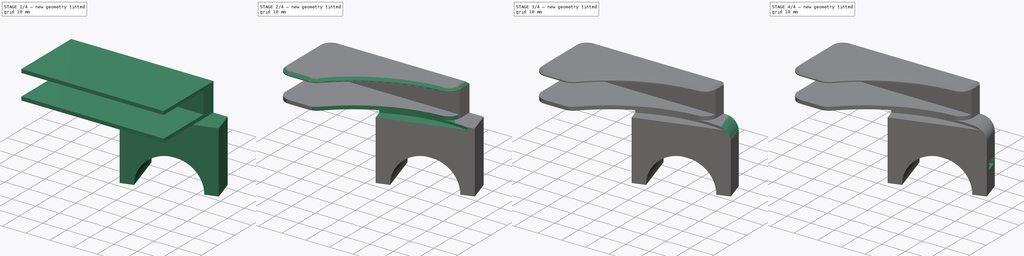
[diagram: build sequence overview — one tinted view per stage of 4, left to right]
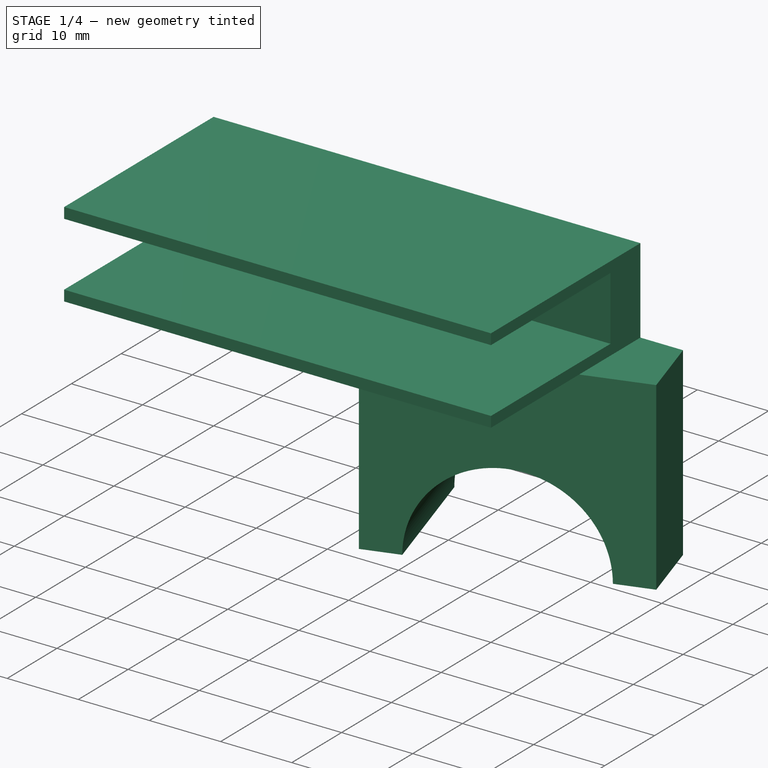
[diagram: stage 1 of 4 — iso view after this stage's code; geometry added in this stage tinted green]
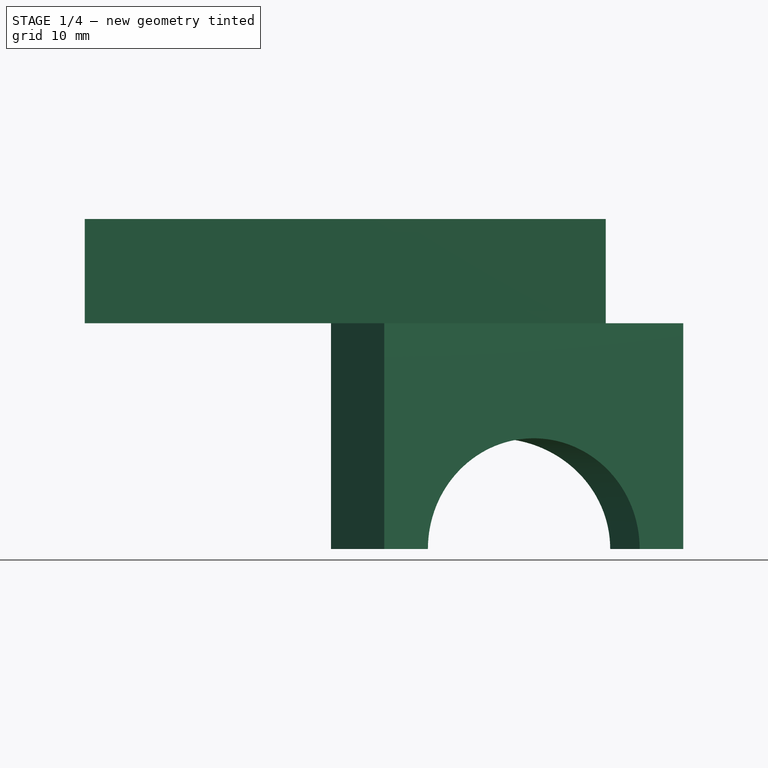
[diagram: stage 1 of 4 — front view after this stage's code; geometry added in this stage tinted green]
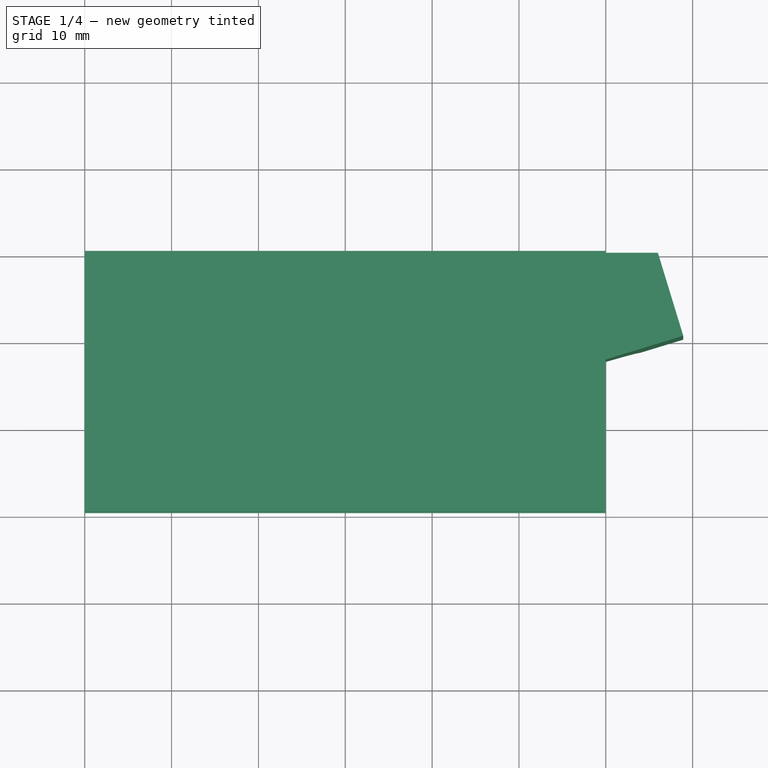
[diagram: stage 1 of 4 — top view after this stage's code; geometry added in this stage tinted green]
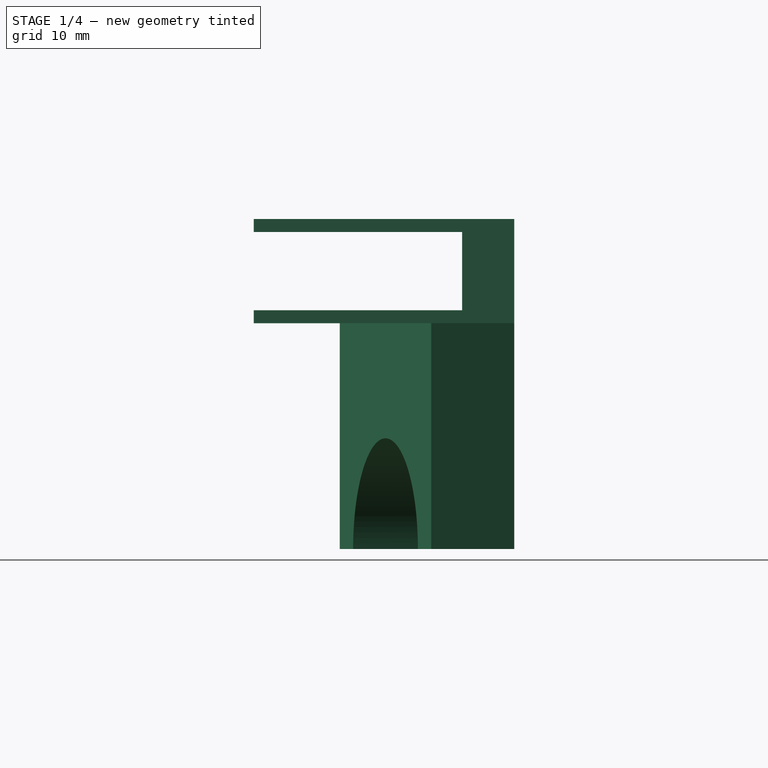
[diagram: stage 1 of 4 — right view after this stage's code; geometry added in this stage tinted green]
FCSTD DOCUMENT  (FreeCAD 0.16R)
Label: Guide7
License: All rights reserved
LicenseURL: http://en.wikipedia.org/wiki/All_rights_reserved
objects: Sketcher::SketchObject×8, PartDesign::Pocket×6, PartDesign::Chamfer×4, PartDesign::Pad×2, PartDesign::Fillet×2
note: 30 computed .brp shape members not serialized (recipe doc carries the construction recipe); baked Part::Feature solids carry a one-line shape summary decoded from their .brp

FEATURE [Sketcher::SketchObject] Sketch
  sketch-geometry (4):
    g0: LineSegment StartX=-60 StartY=0 StartZ=0 EndX=0 EndY=0 EndZ=0
    g1: LineSegment StartX=0 StartY=0 StartZ=0 EndX=0 EndY=-30 EndZ=0
    g2: LineSegment StartX=0 StartY=-30 StartZ=0 EndX=-60 EndY=-30 EndZ=0
    g3: LineSegment StartX=-60 StartY=-30 StartZ=0 EndX=-60 EndY=0 EndZ=0
  constraints (11):
    c: Coincident(g0,g1)
    c: Coincident(g1,g2)
    c: Coincident(g2,g3)
    c: Coincident(g3,g0)
    c: Horizontal(g0)
    c: Horizontal(g2)
    c: Vertical(g1)
    c: Vertical(g3)
    c: Coincident(g0,g-1)
    c: Distance(g3) = 30
    c: Distance(g0) = 60
FEATURE [PartDesign::Pad] Pad
  Length = 12
  Length2 = 100
  Midplane = true
  Sketch = -> Sketch
  Type = 0
FEATURE [Sketcher::SketchObject] Sketch001
  Placement = pos=(0,-30,0) rot=(1,0,0;1.5708rad)
  Support = -> Pad [Face3]
  sketch-geometry (4):
    g0: LineSegment StartX=-95.8323 StartY=4.5 StartZ=0 EndX=18.8197 EndY=4.5 EndZ=0
    g1: LineSegment StartX=18.8197 StartY=4.5 StartZ=0 EndX=18.8197 EndY=-4.5 EndZ=0
    g2: LineSegment StartX=18.8197 StartY=-4.5 StartZ=0 EndX=-95.8323 EndY=-4.5 EndZ=0
    g3: LineSegment StartX=-95.8323 StartY=-4.5 StartZ=0 EndX=-95.8323 EndY=4.5 EndZ=0
  constraints (12):
    c: Coincident(g0,g1)
    c: Coincident(g1,g2)
    c: Coincident(g2,g3)
    c: Coincident(g3,g0)
    c: Horizontal(g0)
    c: Horizontal(g2)
    c: Vertical(g1)
    c: Vertical(g3)
    c: DistanceX(g1) = 18.8197
    c: DistanceX(g2) = -95.8323
    c: Symmetric(g1,g0,g-1)
    c: Distance(g1) = 9
FEATURE [PartDesign::Pocket] Pocket
  Length = 24
  Sketch = -> Sketch001
  Type = 0
FEATURE [Sketcher::SketchObject] Sketch003
  ExternalGeometry = -> [Pocket]
  Placement = pos=(0,0,-6) rot=(1,0,0;3.14159rad)
  Support = -> Pocket [Face4]
  sketch-geometry (7):
    g0: LineSegment StartX=-31.6449 StartY=0 StartZ=0 EndX=6 EndY=0 EndZ=0
    g1: LineSegment StartX=6 StartY=0 StartZ=0 EndX=8.92372 EndY=9.56305 EndZ=0
    g2: LineSegment StartX=8.92372 StartY=9.56305 StartZ=0 EndX=-25.5033 EndY=20.0884 EndZ=0
    g3: LineSegment StartX=-25.5033 StartY=20.0884 StartZ=0 EndX=-31.6449 EndY=0 EndZ=0
    g4: LineSegment [constr] StartX=0.884158 StartY=44.8323 StartZ=0 EndX=-19.2182 EndY=-20.9195 EndZ=0
    g5: LineSegment StartX=-31.6449 StartY=0 StartZ=0 EndX=6 EndY=0 EndZ=0
    g6: LineSegment StartX=-31.6449 StartY=0 StartZ=0 EndX=6 EndY=0 EndZ=0
  constraints (21):
    c: Horizontal(g0)
    c: Coincident(g0,g1)
    c: Coincident(g1,g2)
    c: Coincident(g2,g3)
    c: Coincident(g3,g0)
    c: Parallel(g1,g3)
    c: Perpendicular(g3,g2)
    c: Distance(g2) = 36
    c: PointOnObject(g0,g-3)
    c: Perpendicular(g4,g2)
    c: Symmetric(g1,g2,g4)
    c: Distance(g1) = 10
    c: Angle(g4) = -1.8675
    c: DistanceX(g0) = 6
    c: Distance(g4) = 68.7561
    c: DistanceY(g4) = 44.8323
    c: Coincident(g5,g0)
    c: PointOnObject(g5,g-1)
    c: Coincident(g6,g0)
    c: Coincident(g6,g5)
    c: Coincident(g5,g0)
FEATURE [PartDesign::Pad] Pad001
  Length = 26
  Length2 = 100
  Sketch = -> Sketch003
  Type = 0
FEATURE [Sketcher::SketchObject] Sketch004
  ExternalGeometry = -> [Pad001]
  Placement = pos=(3.4366,-11.2406,0) rot=(0.978386,0.146221,0.146221;1.59265rad)
  Support = -> Pad001 [Face11]
  sketch-geometry (1):
    g0: Circle CenterX=-12.2622 CenterY=-32 CenterZ=0 NormalX=0 NormalY=0 NormalZ=1 Radius=12.75
  constraints (2):
    c: Radius(g0) = 12.75
    c: Symmetric(g-3,g-3,g0)
FEATURE [PartDesign::Pocket] Pocket001
  Length = 5
  Sketch = -> Sketch004
  Type = 1
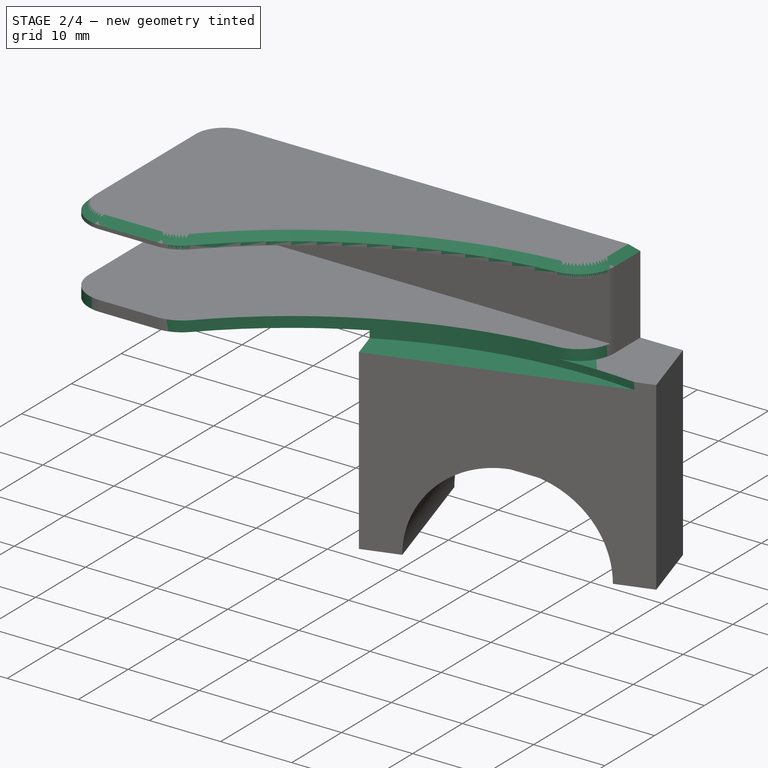
[diagram: stage 2 of 4 — iso view after this stage's code; geometry added in this stage tinted green]
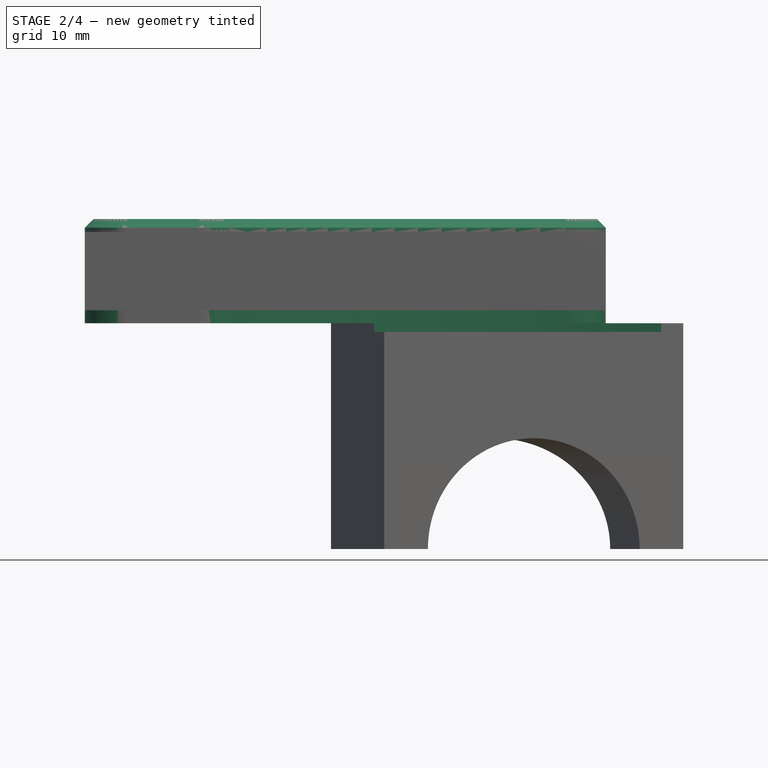
[diagram: stage 2 of 4 — front view after this stage's code; geometry added in this stage tinted green]
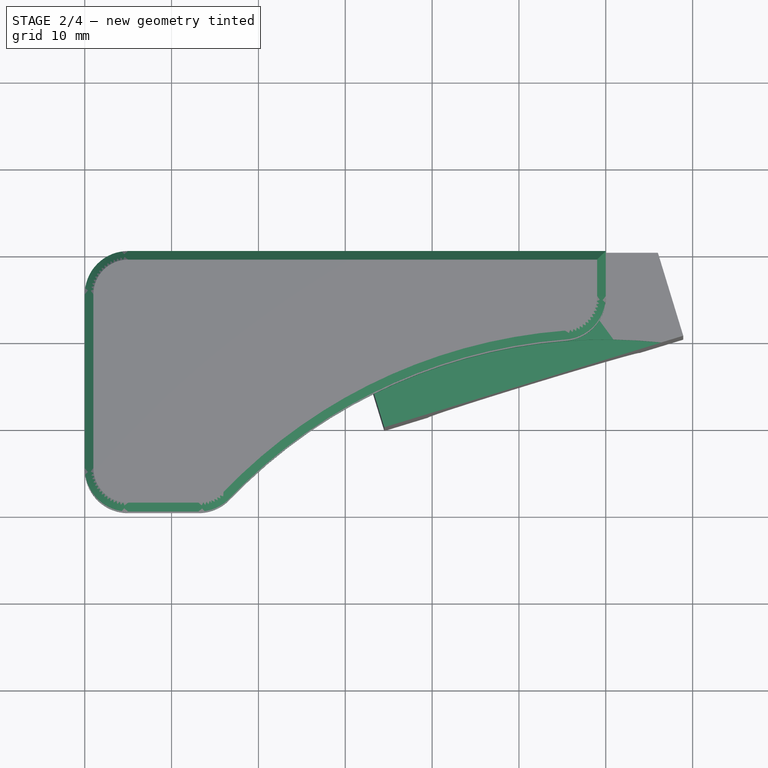
[diagram: stage 2 of 4 — top view after this stage's code; geometry added in this stage tinted green]
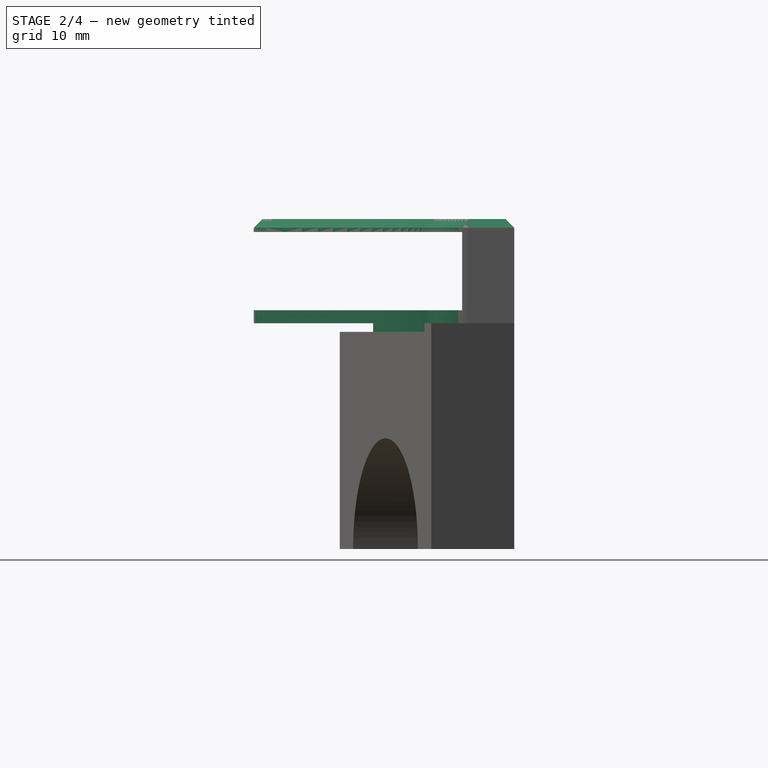
[diagram: stage 2 of 4 — right view after this stage's code; geometry added in this stage tinted green]
FEATURE [Sketcher::SketchObject] Sketch005
  Placement = pos=(0,0,6) rot=(0,0,1;0rad)
  Support = -> Pocket001 [Face4]
  sketch-geometry (1):
    g0: Circle CenterX=0 CenterY=-70 CenterZ=0 NormalX=0 NormalY=0 NormalZ=1 Radius=60
  constraints (3):
    c: Radius(g0) = 60
    c: PointOnObject(g0,g-2)
    c: DistanceY(g0) = -70
FEATURE [PartDesign::Pocket] Pocket002
  Length = 13
  Sketch = -> Sketch005
  Type = 0
FEATURE [PartDesign::Fillet] Fillet
  Base = -> Pocket002 [Edge4,Edge8,Edge19,Edge29,Edge45,Edge2]
  Radius = 5
FEATURE [PartDesign::Chamfer] Chamfer
  Base = -> Fillet [Edge27]
  Size = 1
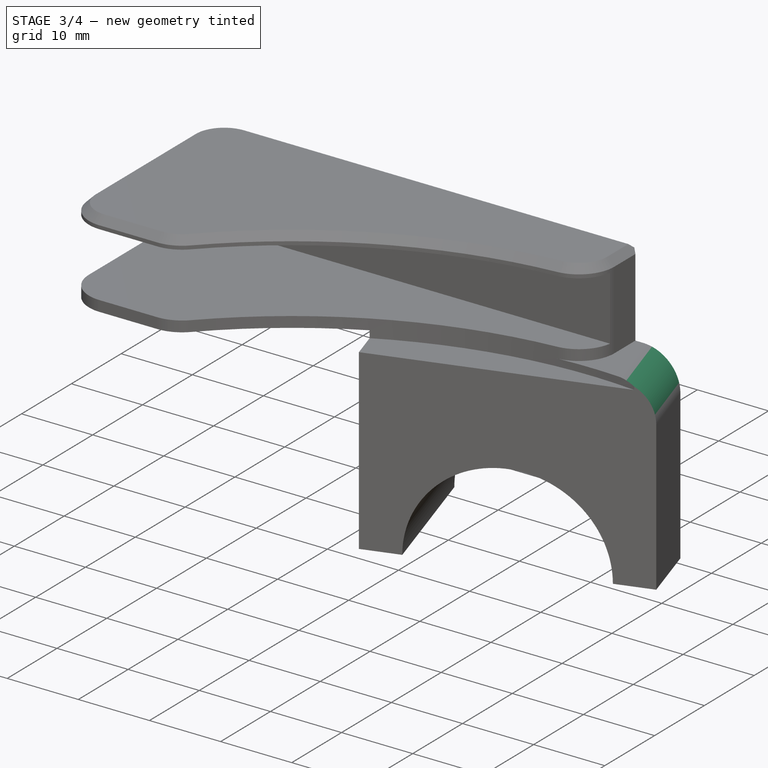
[diagram: stage 3 of 4 — iso view after this stage's code; geometry added in this stage tinted green]
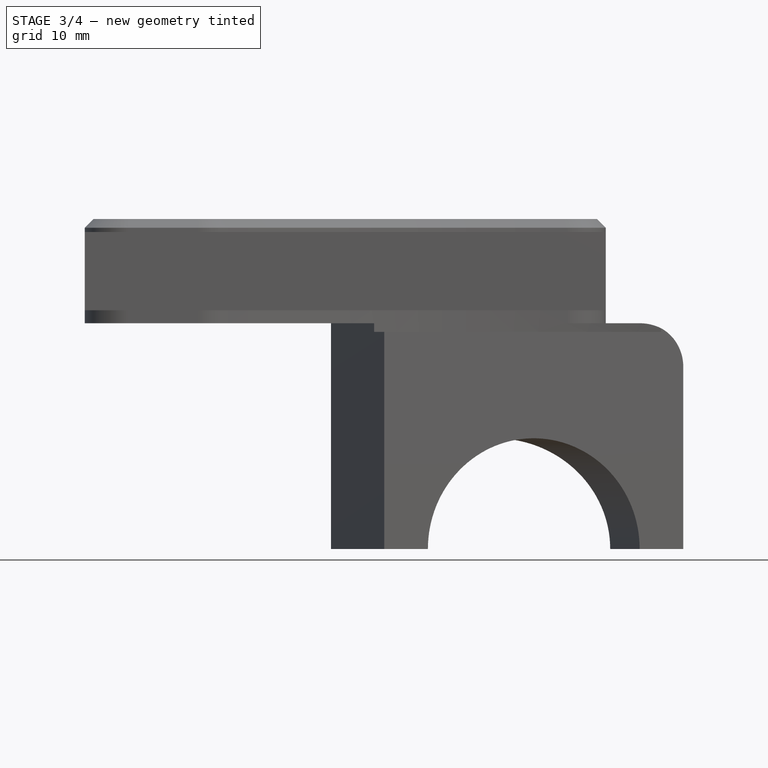
[diagram: stage 3 of 4 — front view after this stage's code; geometry added in this stage tinted green]
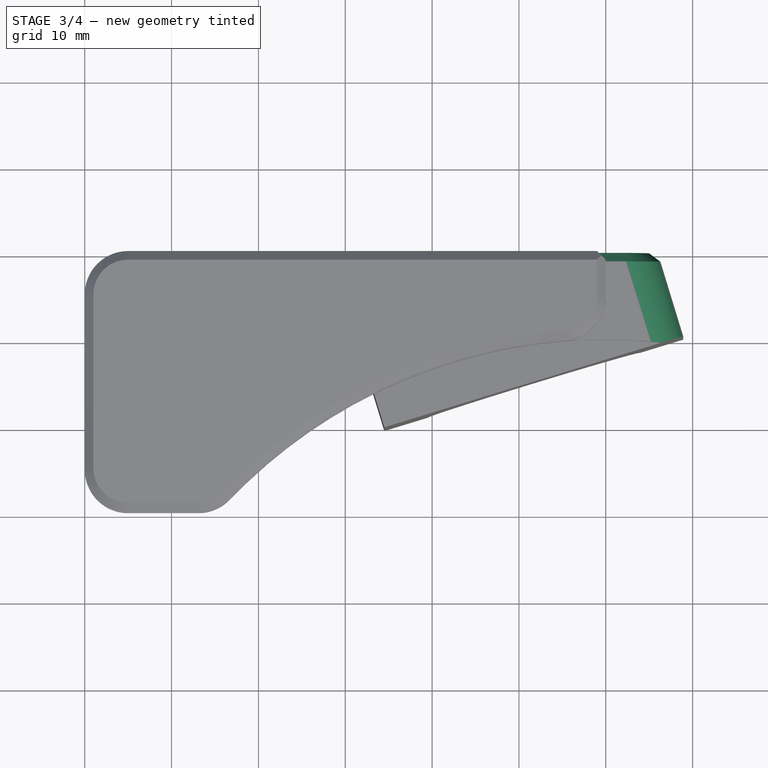
[diagram: stage 3 of 4 — top view after this stage's code; geometry added in this stage tinted green]
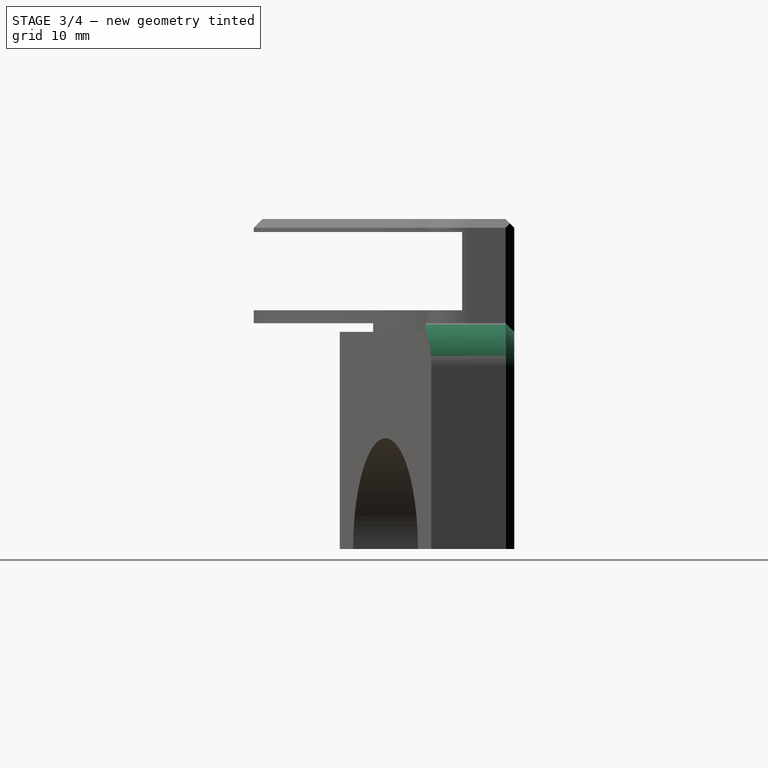
[diagram: stage 3 of 4 — right view after this stage's code; geometry added in this stage tinted green]
FEATURE [PartDesign::Fillet] Fillet001
  Base = -> Chamfer [Edge82]
  Radius = 5
FEATURE [PartDesign::Chamfer] Chamfer001
  Base = -> Fillet001 [Edge46]
  Size = 1
FEATURE [PartDesign::Chamfer] Chamfer002
  Base = -> Chamfer001 [Edge23]
  Size = 1
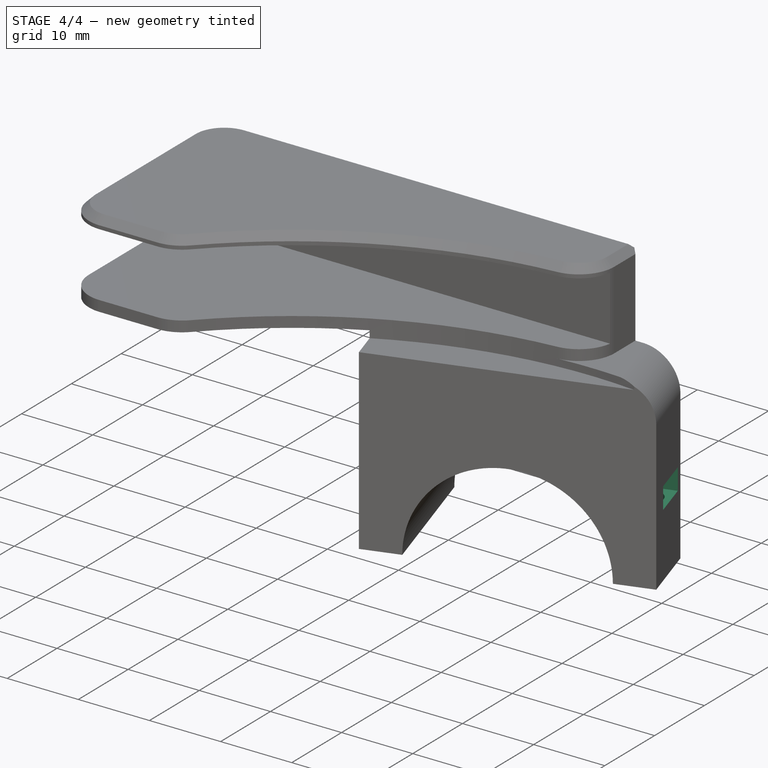
[diagram: stage 4 of 4 — iso view after this stage's code; geometry added in this stage tinted green]
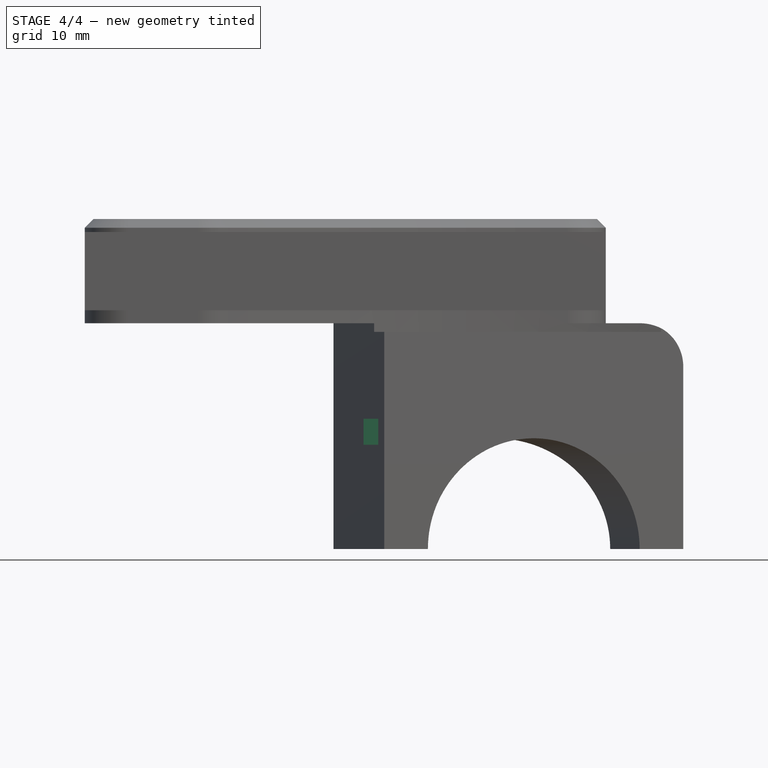
[diagram: stage 4 of 4 — front view after this stage's code; geometry added in this stage tinted green]
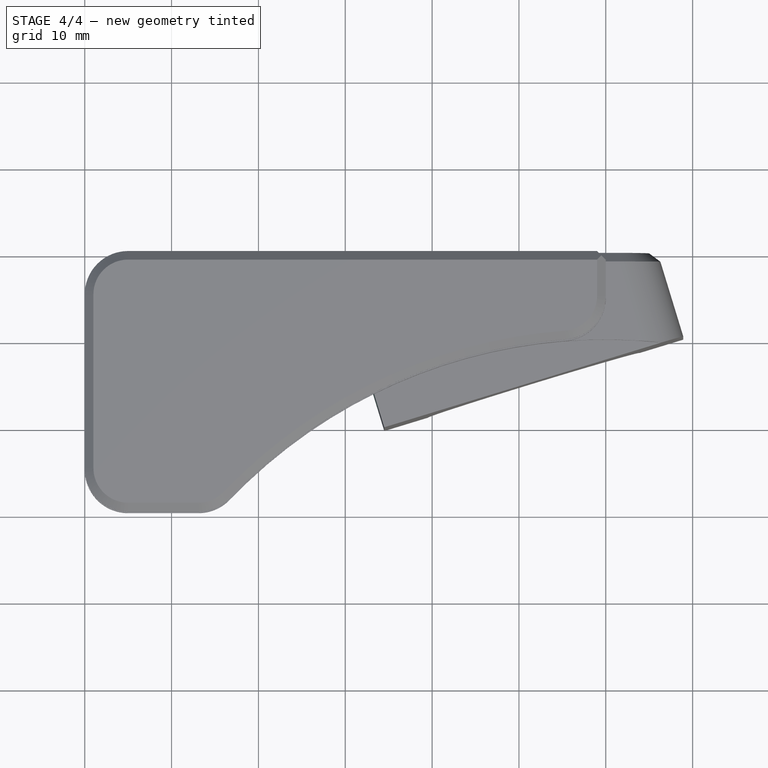
[diagram: stage 4 of 4 — top view after this stage's code; geometry added in this stage tinted green]
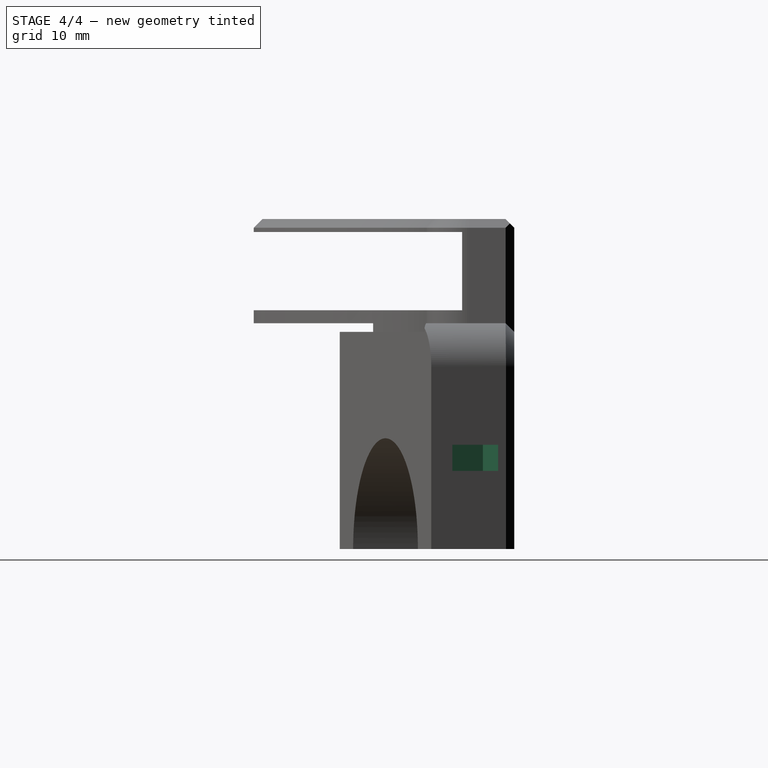
[diagram: stage 4 of 4 — right view after this stage's code; geometry added in this stage tinted green]
FEATURE [PartDesign::Chamfer] Chamfer003
  Base = -> Chamfer002 [Edge13]
  Size = 1
FEATURE [Sketcher::SketchObject] Sketch006
  ExternalGeometry = -> [Chamfer003]
  Placement = pos=(0,0,-32) rot=(1,0,0;3.14159rad)
  Support = -> Chamfer003 [Face6]
  sketch-geometry (2):
    g0: Circle CenterX=-24.4681 CenterY=14.0684 CenterZ=0 NormalX=0 NormalY=0 NormalZ=1 Radius=1.9
    g1: Circle CenterX=4.69918 CenterY=5.15104 CenterZ=0 NormalX=0 NormalY=0 NormalZ=1 Radius=1.9
  constraints (6):
    c: Radius(g1) = 1.9
    c: Equal(g1,g0)
    c: Distance(g1,g-6) = 2.5
    c: Distance(g0,g-5) = 2.5
    c: Distance(g-5,g0) = 6
    c: Distance(g1,g-6) = 6
FEATURE [PartDesign::Pocket] Pocket003
  Length = 12
  Sketch = -> Sketch006
  Type = 0
FEATURE [Sketcher::SketchObject] Sketch007
  ExternalGeometry = -> [Pocket003]
  Placement = pos=(-28.9399,-8.8478,0) rot=(0.690875,-0.51122,-0.51122;1.93244rad)
  Support = -> Pocket003 [Face12]
  sketch-geometry (5):
    g0: LineSegment StartX=3.55423 StartY=-17 StartZ=0 EndX=9.35423 EndY=-17 EndZ=0
    g1: LineSegment StartX=9.35423 StartY=-17 StartZ=0 EndX=9.35423 EndY=-20 EndZ=0
    g2: LineSegment StartX=9.35423 StartY=-20 StartZ=0 EndX=3.55423 EndY=-20 EndZ=0
    g3: LineSegment StartX=3.55423 StartY=-20 StartZ=0 EndX=3.55423 EndY=-17 EndZ=0
    g4: LineSegment [constr] StartX=6.45423 StartY=-17 StartZ=0 EndX=6.45423 EndY=-34.5521 EndZ=0
  constraints (15):
    c: Coincident(g0,g1)
    c: Coincident(g1,g2)
    c: Coincident(g2,g3)
    c: Coincident(g3,g0)
    c: Horizontal(g0)
    c: Horizontal(g2)
    c: Vertical(g1)
    c: Vertical(g3)
    c: Distance(g2) = 5.8
    c: Distance(g1) = 3
    c: Vertical(g4)
    c: Symmetric(g0,g0,g4)
    c: PointOnObject(g4,g0)
    c: Distance(g-4,g4) = 5.3
    c: DistanceY(g1) = -20
FEATURE [PartDesign::Pocket] Pocket004
  Length = 7
  Sketch = -> Sketch007
  Type = 0
FEATURE [Sketcher::SketchObject] Sketch008
  ExternalGeometry = -> [Pocket003]
  Placement = pos=(5.48711,1.67758,0) rot=(0.463605,0.626526,0.626526;2.27337rad)
  Support = -> Pocket004 [Face21]
  sketch-geometry (5):
    g0: LineSegment StartX=-9.20423 StartY=-20 StartZ=0 EndX=-3.70423 EndY=-20 EndZ=0
    g1: LineSegment StartX=-3.70423 StartY=-20 StartZ=0 EndX=-3.70423 EndY=-23 EndZ=0
    g2: LineSegment StartX=-3.70423 StartY=-23 StartZ=0 EndX=-9.20423 EndY=-23 EndZ=0
    g3: LineSegment StartX=-9.20423 StartY=-23 StartZ=0 EndX=-9.20423 EndY=-20 EndZ=0
    g4: LineSegment [constr] StartX=-6.45423 StartY=-20 StartZ=0 EndX=-6.45423 EndY=-32 EndZ=0
  constraints (15):
    c: Coincident(g0,g1)
    c: Coincident(g1,g2)
    c: Coincident(g2,g3)
    c: Coincident(g3,g0)
    c: Horizontal(g0)
    c: Horizontal(g2)
    c: Vertical(g1)
    c: Vertical(g3)
    c: Distance(g2) = 5.5
    c: Distance(g1) = 3
    c: Vertical(g4)
    c: Symmetric(g0,g0,g4)
    c: PointOnObject(g4,g0)
    c: Distance(g4,g-4) = 5.3
    c: DistanceY(g0) = -20
FEATURE [PartDesign::Pocket] Pocket005
  Length = 6
  Sketch = -> Sketch008
  Type = 0
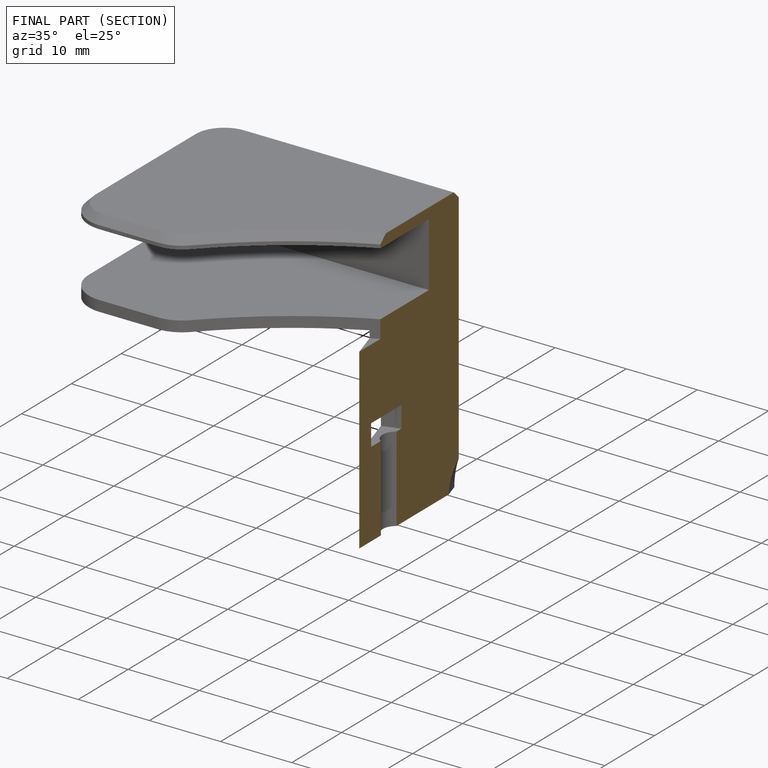
[diagram: finished part — half-section view (interior)]
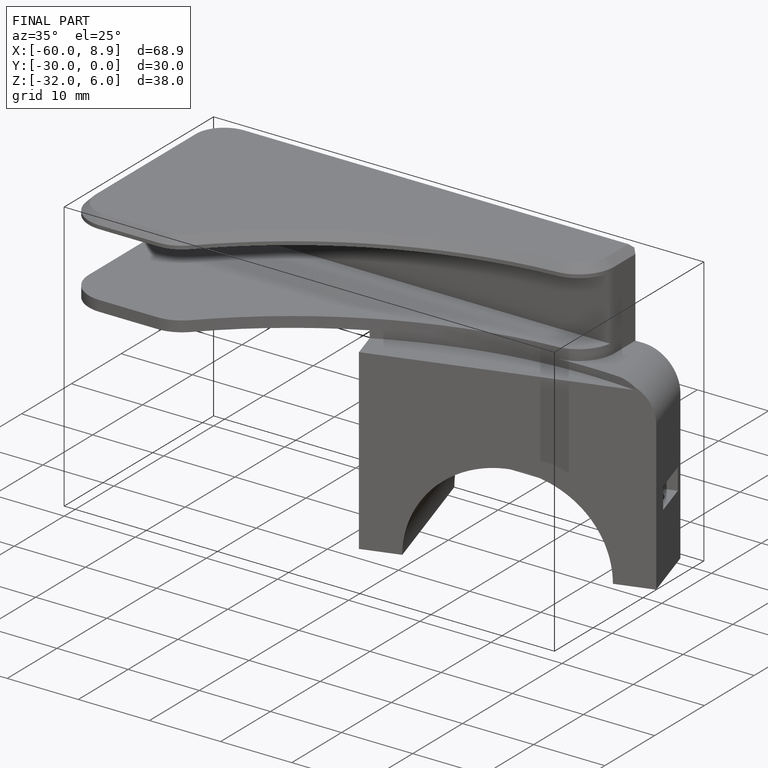
[diagram: finished part — iso view with bounding-box wireframe]
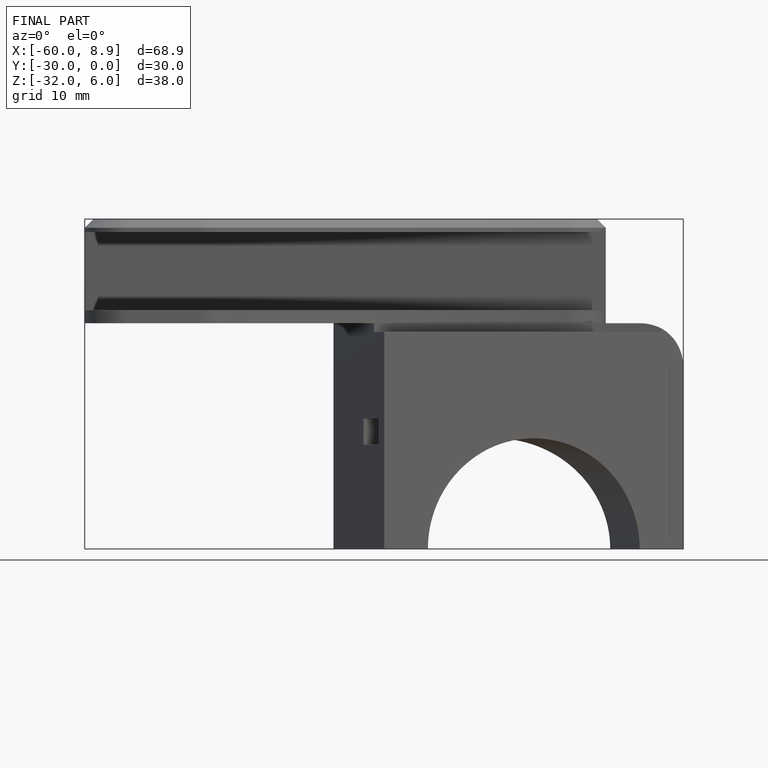
[diagram: finished part — front view with bounding-box wireframe]
